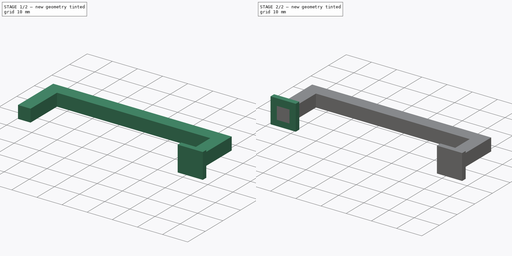
[diagram: build sequence overview — one tinted view per stage of 2, left to right]
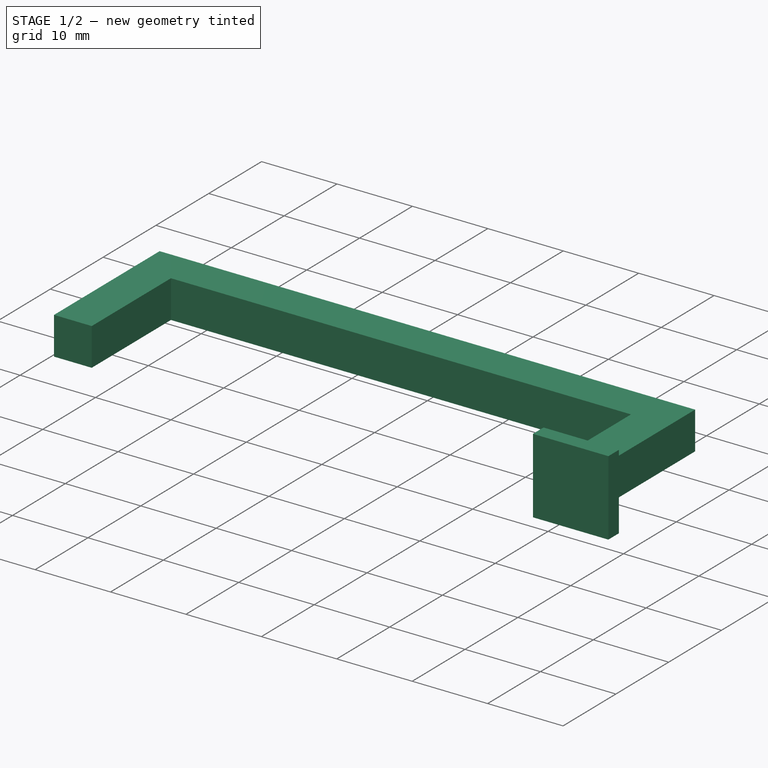
[diagram: stage 1 of 2 — iso view after this stage's code; geometry added in this stage tinted green]
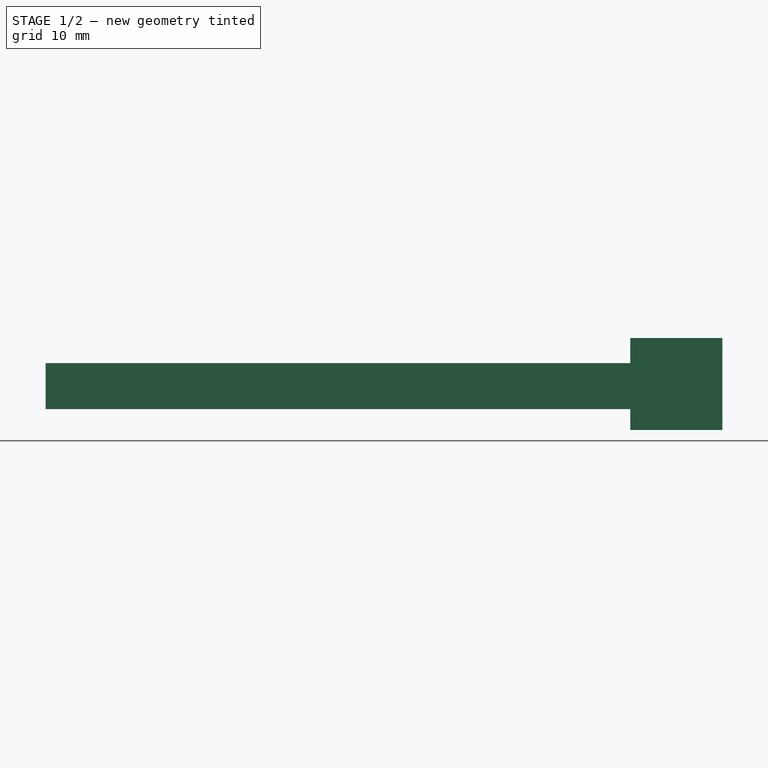
[diagram: stage 1 of 2 — front view after this stage's code; geometry added in this stage tinted green]
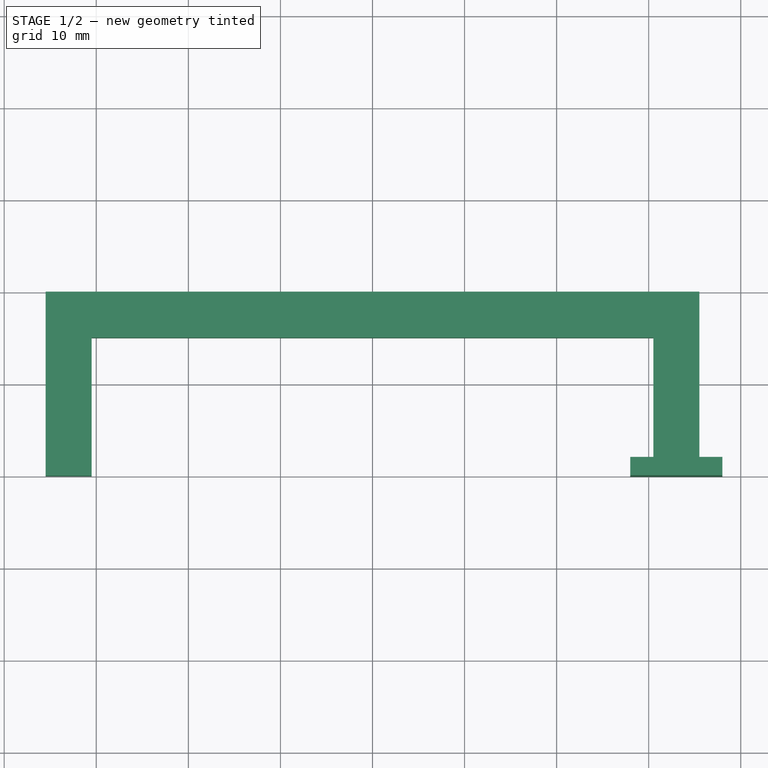
[diagram: stage 1 of 2 — top view after this stage's code; geometry added in this stage tinted green]
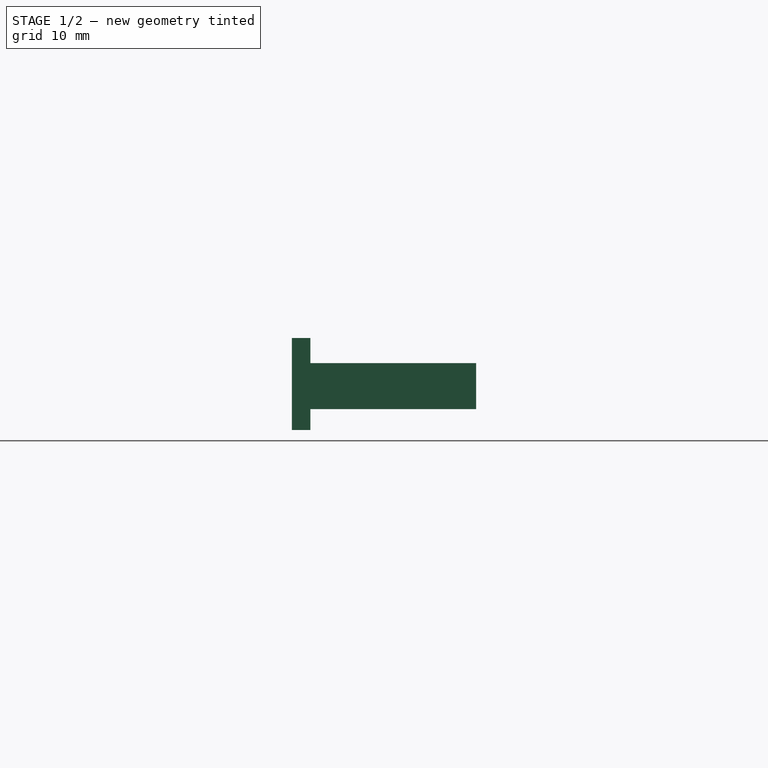
[diagram: stage 1 of 2 — right view after this stage's code; geometry added in this stage tinted green]
FCSTD DOCUMENT  (FreeCAD 0.18.4R)
Label: stopper
License: All rights reserved
LicenseURL: http://en.wikipedia.org/wiki/All_rights_reserved
objects: Sketcher::SketchObject×2, PartDesign::Pad×2, PartDesign::LinearPattern×1, PartDesign::Body×1
note: 8 computed .brp shape members not serialized (recipe doc carries the construction recipe); baked Part::Feature solids carry a one-line shape summary decoded from their .brp

FEATURE [Sketcher::SketchObject] Sketch001
  MapMode = 5
  Support = -> [XY_Plane]
  sketch-geometry (8):
    g0: LineSegment StartX=-35.5 StartY=0 StartZ=0 EndX=-35.5 EndY=20 EndZ=0
    g1: LineSegment StartX=-35.5 StartY=20 StartZ=0 EndX=35.5 EndY=20 EndZ=0
    g2: LineSegment StartX=35.5 StartY=20 StartZ=0 EndX=35.5 EndY=0 EndZ=0
    g3: LineSegment StartX=35.5 StartY=0 StartZ=0 EndX=30.5 EndY=0 EndZ=0
    g4: LineSegment StartX=30.5 StartY=0 StartZ=0 EndX=30.5 EndY=15 EndZ=0
    g5: LineSegment StartX=30.5 StartY=15 StartZ=0 EndX=-30.5 EndY=15 EndZ=0
    g6: LineSegment StartX=-30.5 StartY=15 StartZ=0 EndX=-30.5 EndY=0 EndZ=0
    g7: LineSegment StartX=-30.5 StartY=0 StartZ=0 EndX=-35.5 EndY=0 EndZ=0
  constraints (24):
    c: Vertical(g0)
    c: Coincident(g0,g1)
    c: Horizontal(g1)
    c: Coincident(g1,g2)
    c: PointOnObject(g2,g-1)
    c: Vertical(g2)
    c: Coincident(g2,g3)
    c: PointOnObject(g3,g-1)
    c: Coincident(g3,g4)
    c: Vertical(g4)
    c: Coincident(g4,g5)
    c: Horizontal(g5)
    c: Coincident(g5,g6)
    c: PointOnObject(g6,g-1)
    c: Vertical(g6)
    c: Coincident(g6,g7)
    c: Coincident(g7,g0)
    c: Horizontal(g7)
    c: DistanceX(g7,g7) = 5
    c: Equal(g3,g7)
    c: DistanceX(g-1,g3) = 30.5
    c: DistanceX(g6,g3) = 61
    c: DistanceY(g0,g0) = 20
    c: DistanceY(g5,g0) = 5
FEATURE [PartDesign::Pad] Pad
  Length = 5
  Length2 = 100
  Midplane = true
  Profile = -> Sketch001
  Type = 0
FEATURE [Sketcher::SketchObject] Sketch002
  MapMode = 5
  Placement = pos=(0,0,0) rot=(1,0,0;1.5708rad)
  Support = -> [Pad]
  sketch-geometry (4):
    g0: LineSegment StartX=28 StartY=5.22897 StartZ=0 EndX=38 EndY=5.22897 EndZ=0
    g1: LineSegment StartX=38 StartY=5.22897 StartZ=0 EndX=38 EndY=-4.77103 EndZ=0
    g2: LineSegment StartX=38 StartY=-4.77103 StartZ=0 EndX=28 EndY=-4.77103 EndZ=0
    g3: LineSegment StartX=28 StartY=-4.77103 StartZ=0 EndX=28 EndY=5.22897 EndZ=0
  constraints (11):
    c: Coincident(g0,g1)
    c: Coincident(g1,g2)
    c: Coincident(g2,g3)
    c: Coincident(g3,g0)
    c: Horizontal(g0)
    c: Horizontal(g2)
    c: Vertical(g1)
    c: Vertical(g3)
    c: DistanceX(g0,g0) = 10
    c: Equal(g0,g3)
    c: DistanceX(g-1,g2) = 28
FEATURE [PartDesign::Pad] Pad001
  BaseFeature = -> Pad
  Length = 2
  Length2 = 100
  Profile = -> Sketch002
  Reversed = true
  Type = 0
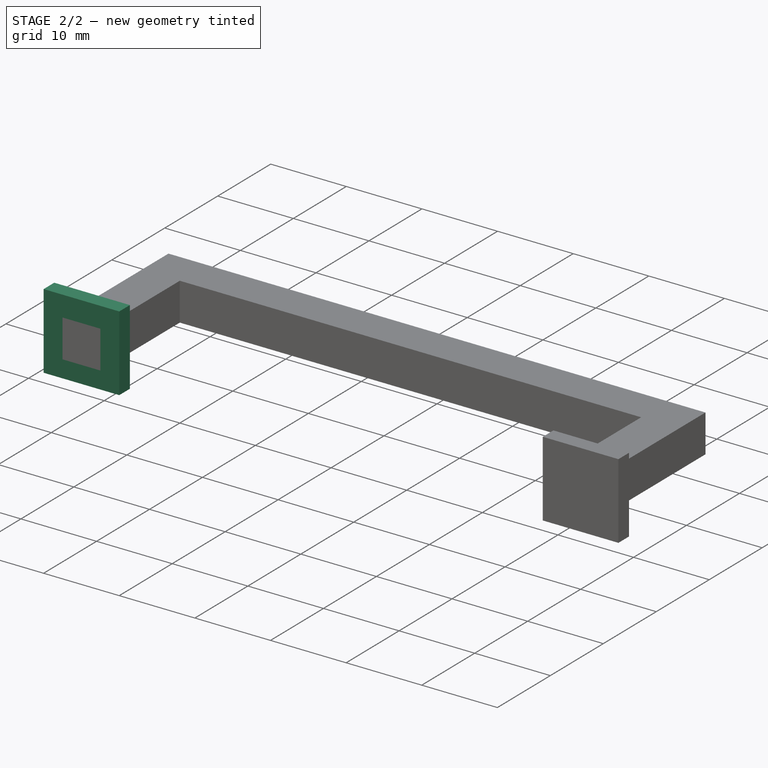
[diagram: stage 2 of 2 — iso view after this stage's code; geometry added in this stage tinted green]
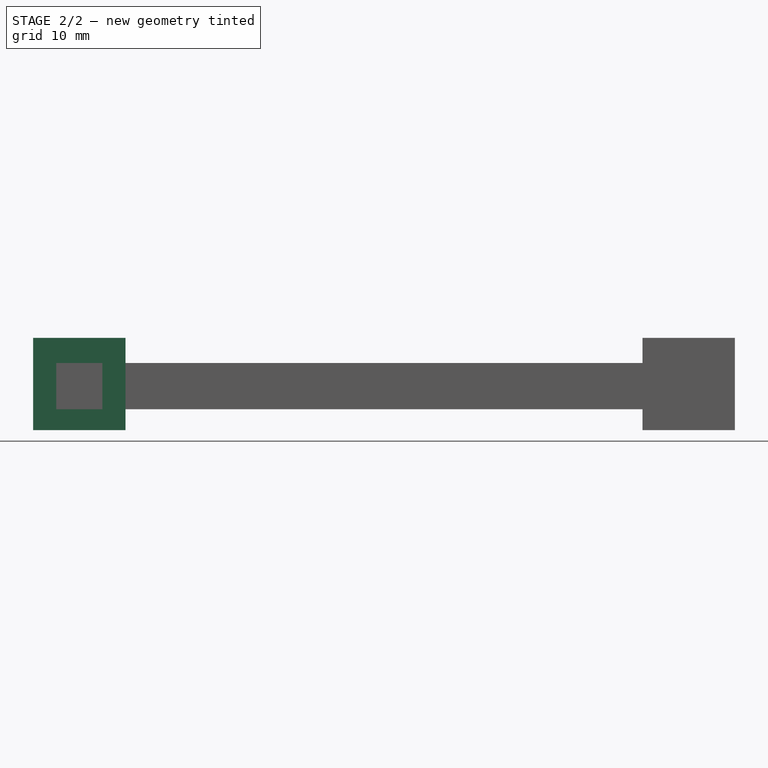
[diagram: stage 2 of 2 — front view after this stage's code; geometry added in this stage tinted green]
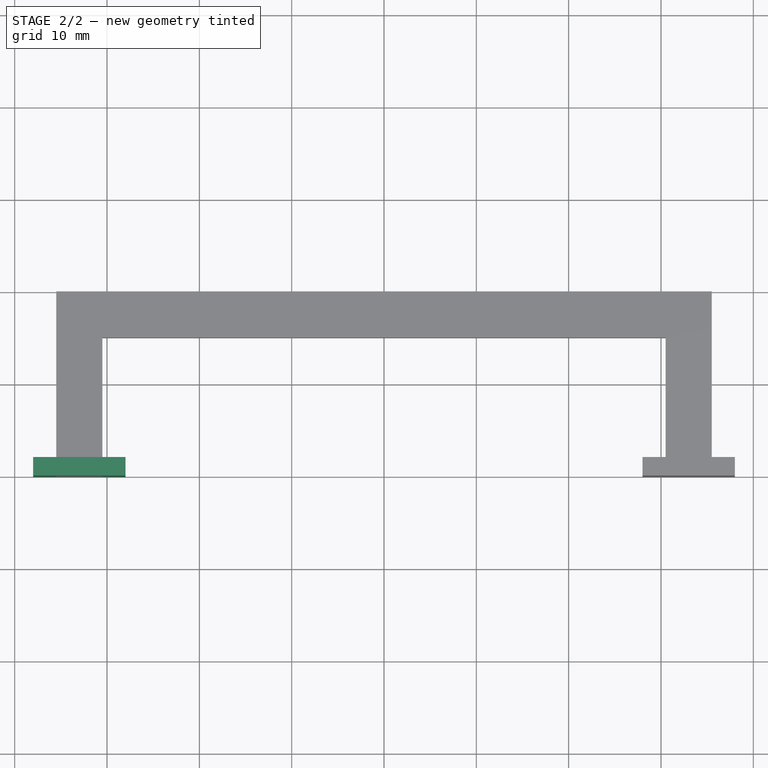
[diagram: stage 2 of 2 — top view after this stage's code; geometry added in this stage tinted green]
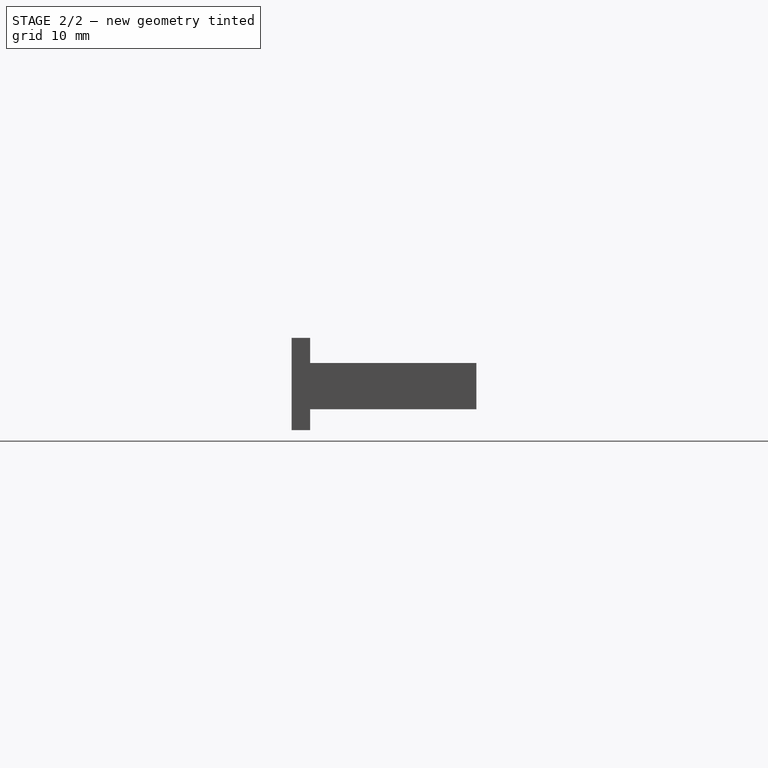
[diagram: stage 2 of 2 — right view after this stage's code; geometry added in this stage tinted green]
FEATURE [PartDesign::LinearPattern] LinearPattern
  BaseFeature = -> Pad001
  Direction = -> Sketch002 [H_Axis]
  Length = 66
  Occurrences = 2
  Originals = -> [Pad001]
  Reversed = true
FEATURE [PartDesign::Body] Body
  Group = -> [Sketch001,Pad,Sketch002,Pad001,LinearPattern]
  Origin = -> Origin
  Tip = -> LinearPattern
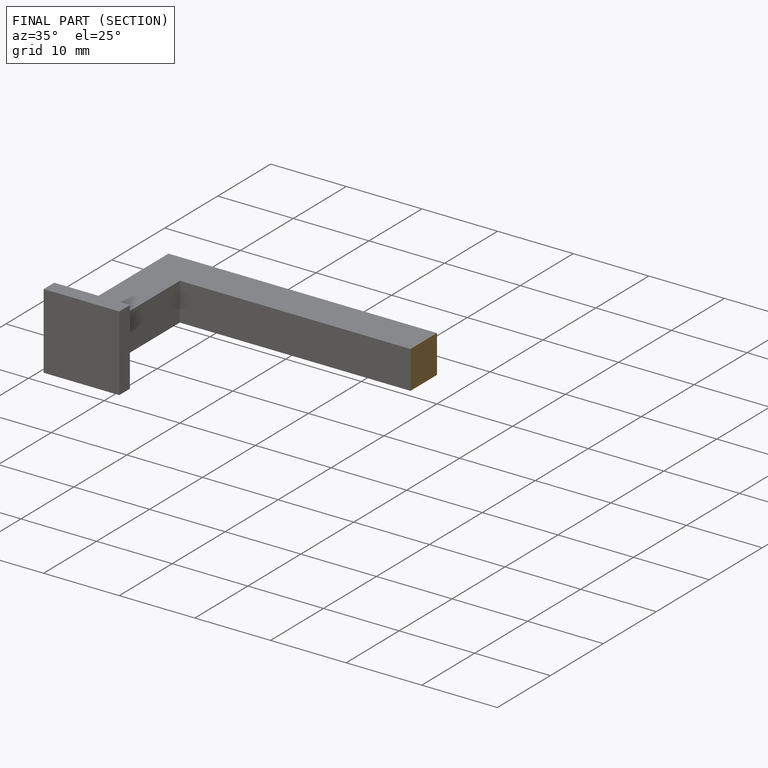
[diagram: finished part — half-section view (interior)]
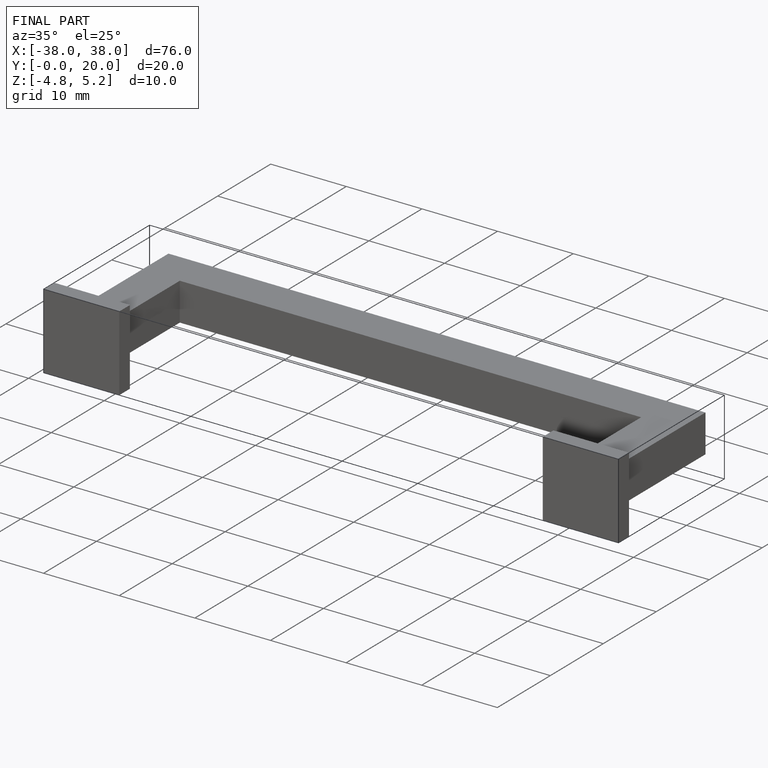
[diagram: finished part — iso view with bounding-box wireframe]
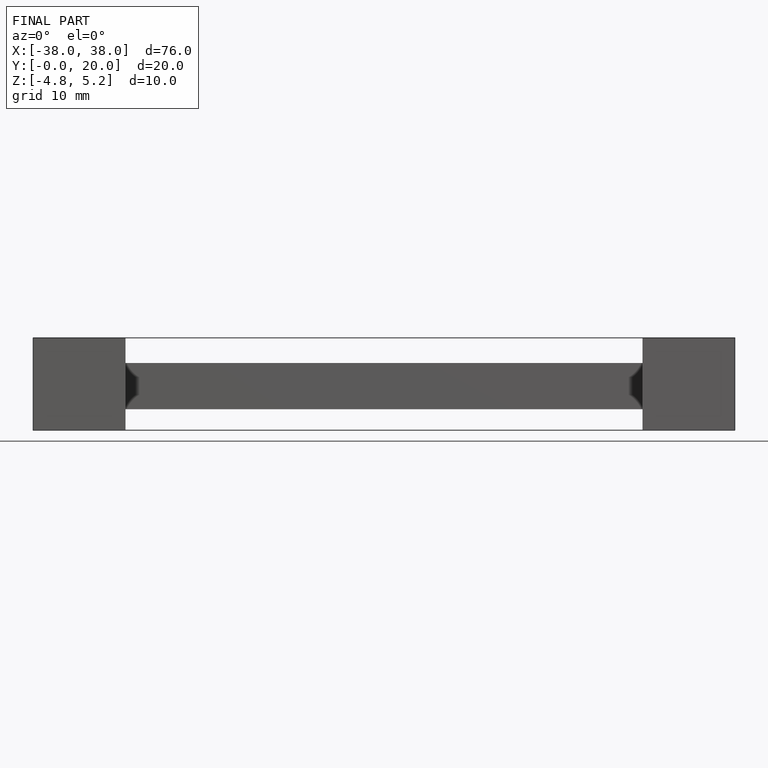
[diagram: finished part — front view with bounding-box wireframe]
